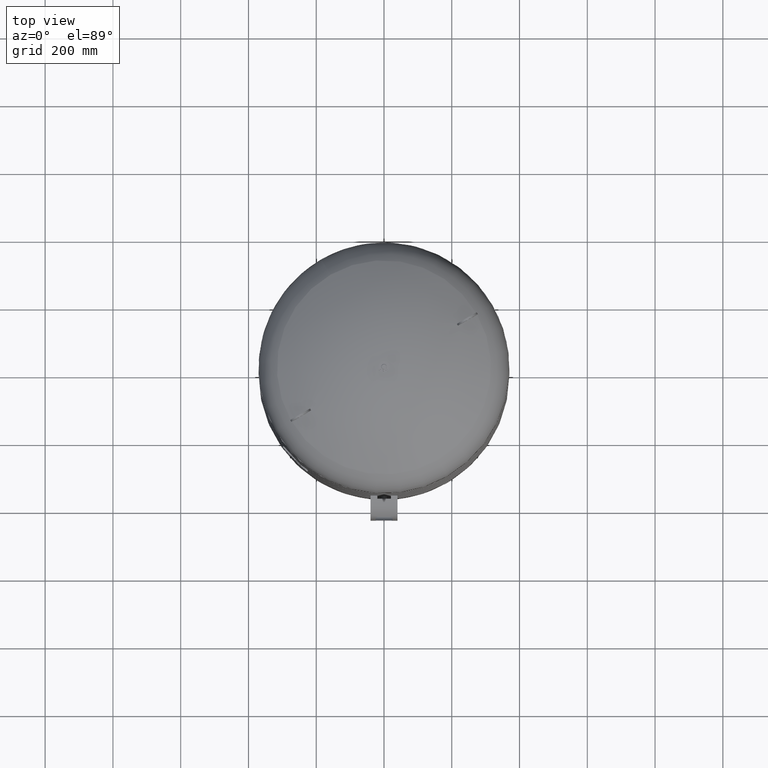
[diagram: clean part render]
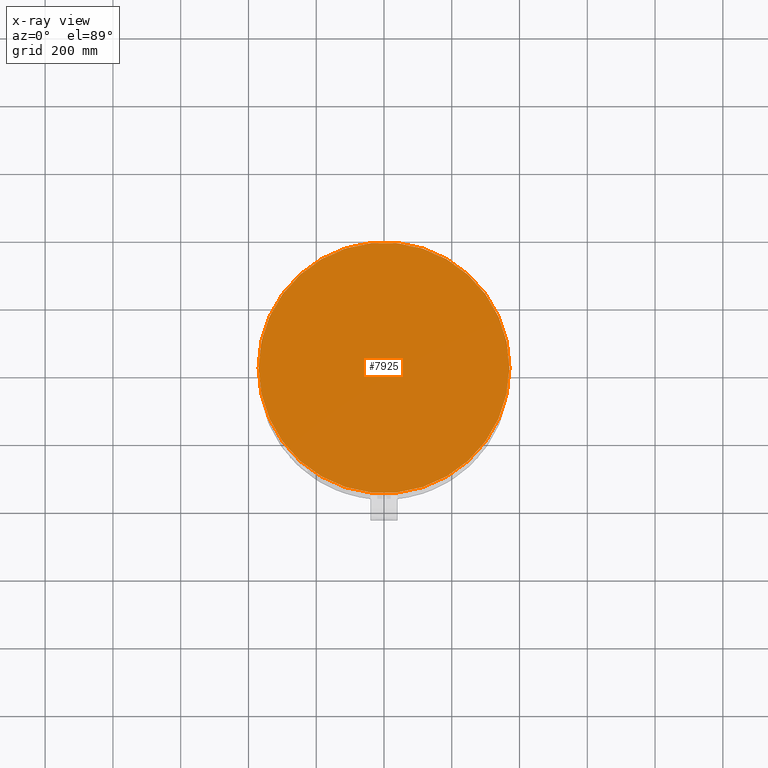
[diagram: x-ray — body ghosted, one internal face saturated and labeled with its STEP entity id]
A machine part, top view, then the same camera in x-ray: the body is ghosted and one INTERNAL B-rep face — a face not visible from any outside direction — is saturated and labeled: STEP entity #7925.
In plain terms, the highlighted planar face has unit normal (0, 0, 1).
Its self-contained STEP definition (entity closure, byte-faithful):
#7585=CARTESIAN_POINT('',(370.0,0.0,1641.0));
#7586=VERTEX_POINT('',#7585);
#7595=CARTESIAN_POINT('',(-369.999999999999890,-4.531044E-014,1641.0));
#7596=VERTEX_POINT('',#7595);
#7597=CARTESIAN_POINT('',(1.668796E-014,0.0,1641.0));
#7598=DIRECTION('',(0.0,0.0,1.0));
#7599=DIRECTION('',(1.0,0.0,0.0));
#7600=AXIS2_PLACEMENT_3D('',#7597,#7598,#7599);
#7601=CIRCLE('',#7600,370.0);
#7602=EDGE_CURVE('',#7596,#7586,#7601,.T.);
#7906=CARTESIAN_POINT('',(1.668796E-014,0.0,1641.0));
#7907=DIRECTION('',(0.0,0.0,1.0));
#7908=DIRECTION('',(1.0,0.0,0.0));
#7909=AXIS2_PLACEMENT_3D('',#7906,#7907,#7908);
#7910=CIRCLE('',#7909,370.0);
#7911=EDGE_CURVE('',#7586,#7596,#7910,.T.);
#7916=CARTESIAN_POINT('',(185.0,0.0,1641.0));
#7917=DIRECTION('',(0.0,0.0,1.0));
#7918=DIRECTION('',(1.0,0.0,0.0));
#7919=AXIS2_PLACEMENT_3D('',#7916,#7917,#7918);
#7920=PLANE('',#7919);
#7921=ORIENTED_EDGE('',*,*,#7911,.T.);
#7922=ORIENTED_EDGE('',*,*,#7602,.T.);
#7923=EDGE_LOOP('',(#7921,#7922));
#7924=FACE_OUTER_BOUND('',#7923,.T.);
#7925=ADVANCED_FACE('',(#7924),#7920,.T.);